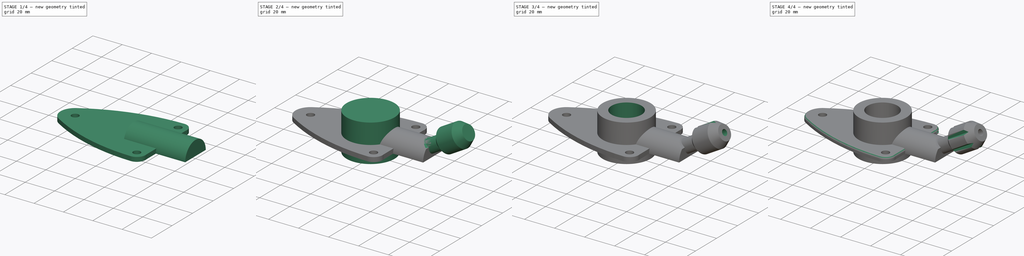
[diagram: build sequence overview — one tinted view per stage of 4, left to right]
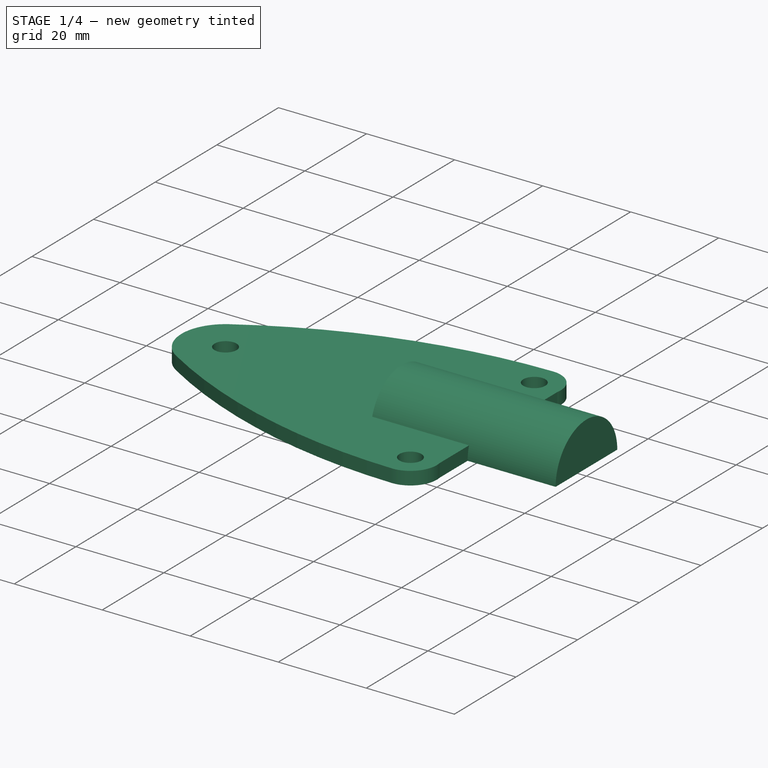
[diagram: stage 1 of 4 — iso view after this stage's code; geometry added in this stage tinted green]
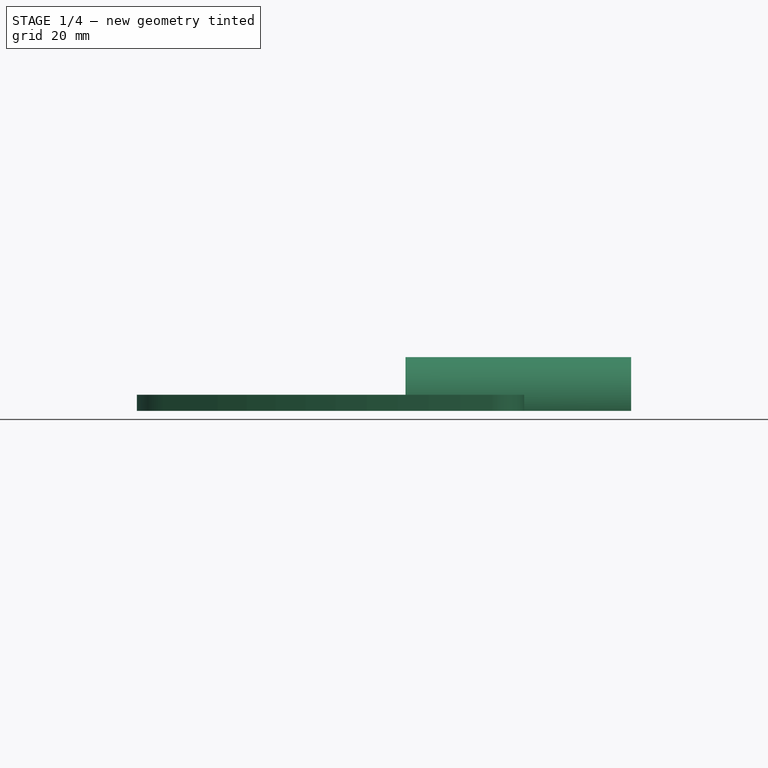
[diagram: stage 1 of 4 — front view after this stage's code; geometry added in this stage tinted green]
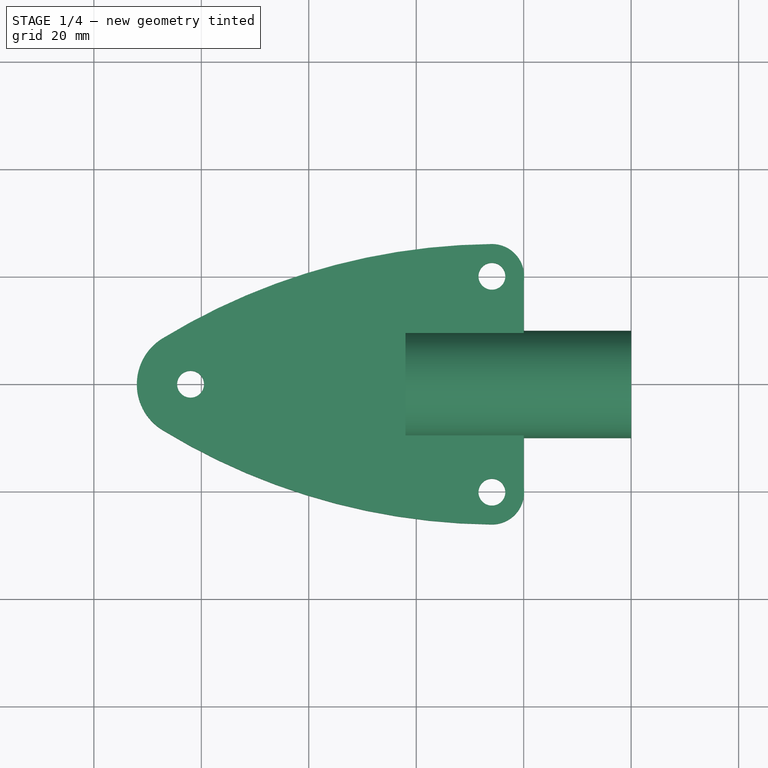
[diagram: stage 1 of 4 — top view after this stage's code; geometry added in this stage tinted green]
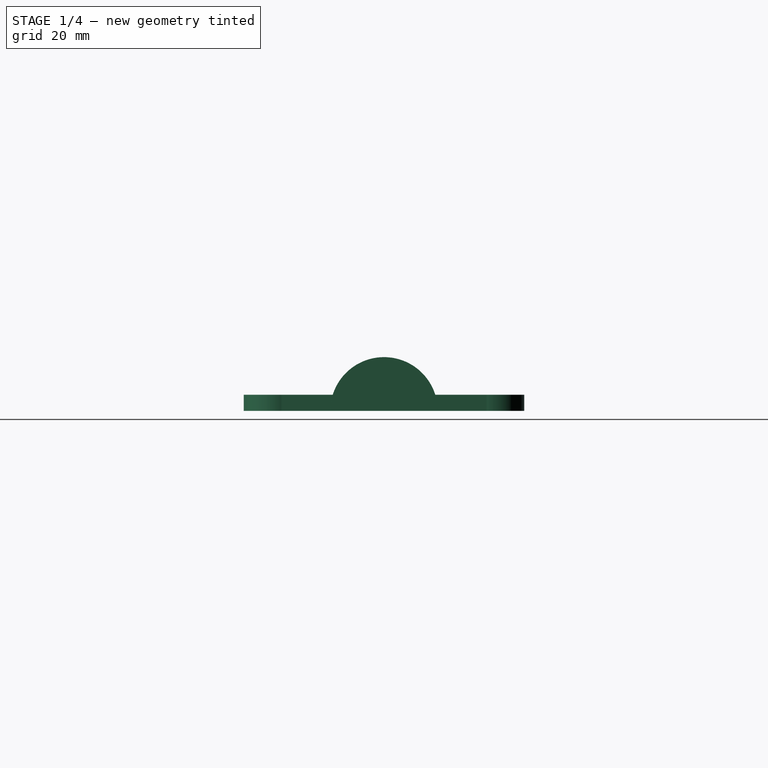
[diagram: stage 1 of 4 — right view after this stage's code; geometry added in this stage tinted green]
FCSTD DOCUMENT  (FreeCAD 0.21R33771 (Git))
Label: ex14
License: All rights reserved
LicenseURL: https://en.wikipedia.org/wiki/All_rights_reserved
objects: Sketcher::SketchObject×9, PartDesign::Pad×3, PartDesign::Pocket×3, PartDesign::Revolution×1, PartDesign::SubtractivePipe×1, PartDesign::PolarPattern×1, PartDesign::Fillet×1, PartDesign::Body×1
note: 29 computed .brp shape members not serialized (recipe doc carries the construction recipe); baked Part::Feature solids carry a one-line shape summary decoded from their .brp

FEATURE [Sketcher::SketchObject] Sketch
  FullyConstrained = false
  MapMode = 5
  Support = -> [XY_Plane]
  sketch-geometry (14):
    g0: ArcOfCircle CenterX=-5.91663 CenterY=20.0936 CenterZ=0 NormalX=0 NormalY=0 NormalZ=1 AngleXU=0 Radius=6 StartAngle=6.11629 EndAngle=7.86462
    g1: ArcOfCircle CenterX=-4.70426 CenterY=-93.8999 CenterZ=0 NormalX=0 NormalY=0 NormalZ=1 AngleXU=0 Radius=120 StartAngle=1.58143 EndAngle=2.11867
    g2: ArcOfCircle CenterX=-62 CenterY=-2.1e-15 CenterZ=0 NormalX=0 NormalY=0 NormalZ=1 AngleXU=0 Radius=10 StartAngle=2.11867 EndAngle=4.16452
    g3: ArcOfCircle CenterX=-4.70426 CenterY=93.8999 CenterZ=0 NormalX=0 NormalY=0 NormalZ=1 AngleXU=0 Radius=120 StartAngle=4.16452 EndAngle=4.70175
    g4: ArcOfCircle CenterX=-5.91663 CenterY=-20.0936 CenterZ=0 NormalX=0 NormalY=0 NormalZ=1 AngleXU=0 Radius=6 StartAngle=4.70175 EndAngle=6.45008
    g5: LineSegment StartX=-9e-16 StartY=19.0969 StartZ=0 EndX=0 EndY=-19.0969 EndZ=0
    g6: LineSegment StartX=-5.98044 StartY=26.0933 StartZ=0 EndX=-67.2087 EndY=8.53636 EndZ=0
    g7: LineSegment StartX=-67.2087 StartY=8.53636 StartZ=0 EndX=-195.772 EndY=-28.3285 EndZ=0
    g8: LineSegment StartX=-5.98044 StartY=-26.0933 StartZ=0 EndX=-67.2087 EndY=-8.53636 EndZ=0
    g9: LineSegment StartX=-67.2087 StartY=-8.53636 StartZ=0 EndX=-167.59 EndY=20.2475 EndZ=0
    g10: GeomPoint X=-72 Y=0 Z=0
    g11: Circle CenterX=-62 CenterY=-2.1e-15 CenterZ=0 NormalX=0 NormalY=0 NormalZ=1 AngleXU=0 Radius=2.5
    g12: Circle CenterX=-5.91663 CenterY=20.0936 CenterZ=0 NormalX=0 NormalY=0 NormalZ=1 AngleXU=0 Radius=2.5
    g13: Circle CenterX=-5.91663 CenterY=-20.0936 CenterZ=0 NormalX=0 NormalY=0 NormalZ=1 AngleXU=0 Radius=2.5
  constraints (32):
    c: PointOnObject(g0,g-2)
    c: Coincident(g3,g2)
    c: Coincident(g5,g0)
    c: Coincident(g5,g4)
    c: Equal(g0,g4)
    c: Radius(g0) = 6
    c: Equal(g1,g3)
    c: Radius(g1) = 120
    c: Tangent(g2,g1) = -1.5708
    c: Vertical(g0,g3)
    c: Symmetric(g0,g4,g-1)
    c: Coincident(g6,g0)
    c: Coincident(g6,g1)
    c: Coincident(g7,g1)
    c: Coincident(g8,g3)
    c: Coincident(g8,g2)
    c: Coincident(g9,g2)
    c: Tangent(g9,g8)
    c: Tangent(g6,g7)
    c: Symmetric(g1,g2,g-1)
    c: PointOnObject(g10,g2)
    c: PointOnObject(g10,g-1)
    c: DistanceX(g10,g-1) = 72
    c: Tangent(g4,g3) = -1.5708
    c: Tangent(g1,g0) = -1.5708
    c: Angle(g9,g7) = 0.558505
    c: Coincident(g11,g2)
    c: Coincident(g12,g0)
    c: Coincident(g13,g4)
    c: Equal(g13,g12)
    c: Equal(g12,g11)
    c: Diameter(g11) = 5
FEATURE [PartDesign::Pad] Pad
  Direction = (0,0,1)
  Length = 3
  Length2 = 10
  Profile = -> Sketch
  ReferenceAxis = -> Sketch [N_Axis]
  Type = 0
FEATURE [Sketcher::SketchObject] Sketch001
  FullyConstrained = true
  MapMode = 5
  Placement = pos=(-4e-16,0,0) rot=(0.57735,0.57735,0.57735;2.0944rad)
  Support = -> [Pad]
  sketch-geometry (2):
    g0: ArcOfCircle CenterX=0 CenterY=0 CenterZ=0 NormalX=0 NormalY=0 NormalZ=1 AngleXU=0 Radius=10 StartAngle=0 EndAngle=3.14159
    g1: LineSegment StartX=-10 StartY=0 StartZ=0 EndX=10 EndY=0 EndZ=0
  constraints (6):
    c: Coincident(g0,g-1)
    c: Horizontal(g1)
    c: Coincident(g0,g1)
    c: Coincident(g0,g1)
    c: PointOnObject(g0,g1)
    c: Diameter(g0) = 20
FEATURE [PartDesign::Pad] Pad001
  BaseFeature = -> Pad
  Direction = (1,0,0)
  Length = 20
  Length2 = 22
  Midplane = true
  Profile = -> Sketch001
  ReferenceAxis = -> Sketch001 [N_Axis]
  Type = 4
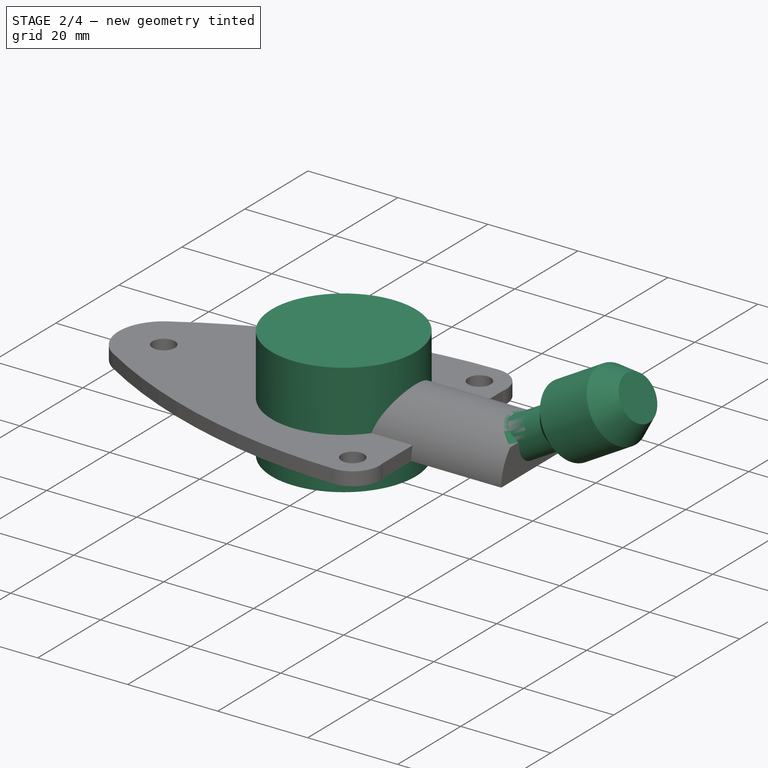
[diagram: stage 2 of 4 — iso view after this stage's code; geometry added in this stage tinted green]
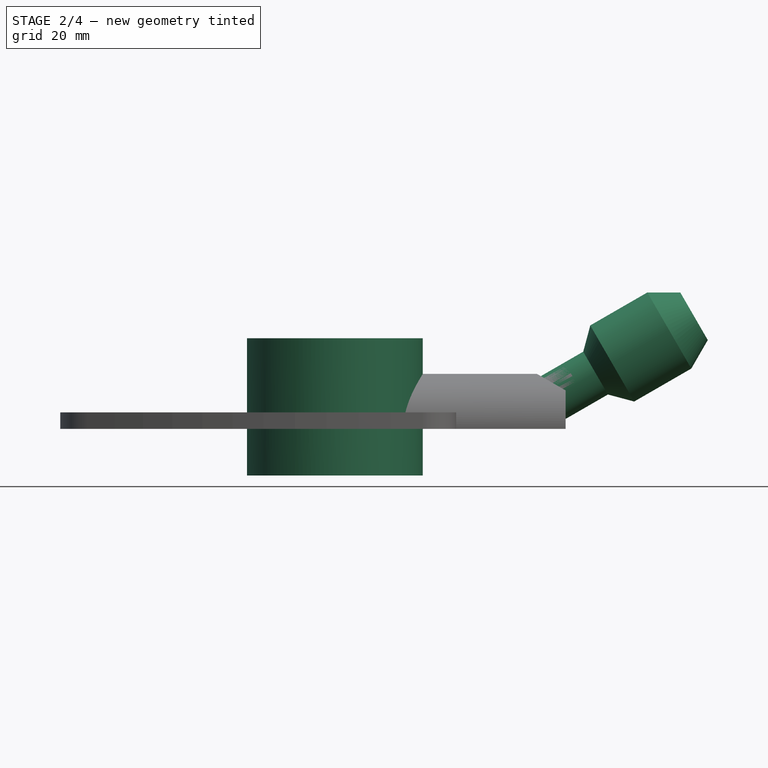
[diagram: stage 2 of 4 — front view after this stage's code; geometry added in this stage tinted green]
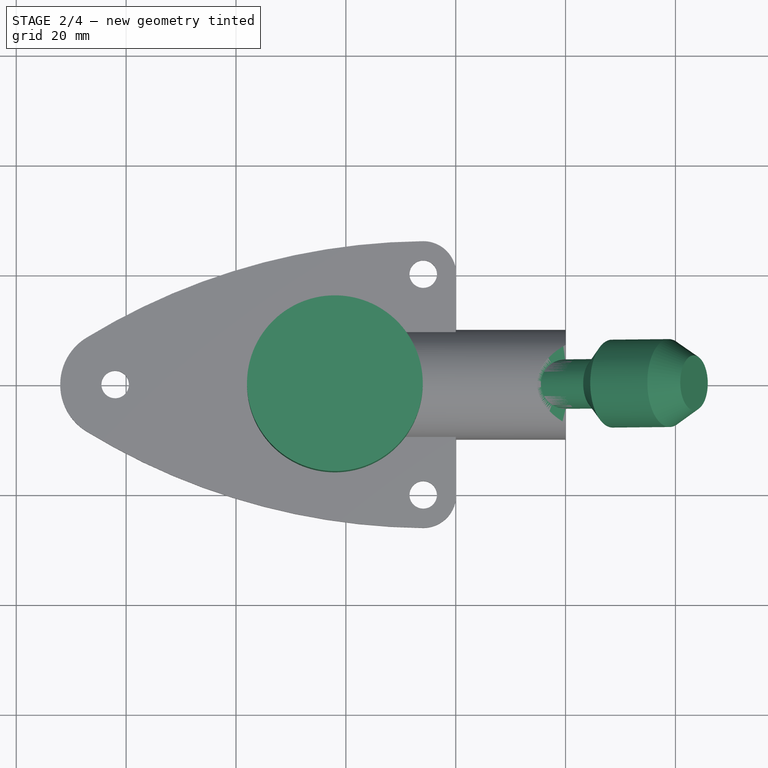
[diagram: stage 2 of 4 — top view after this stage's code; geometry added in this stage tinted green]
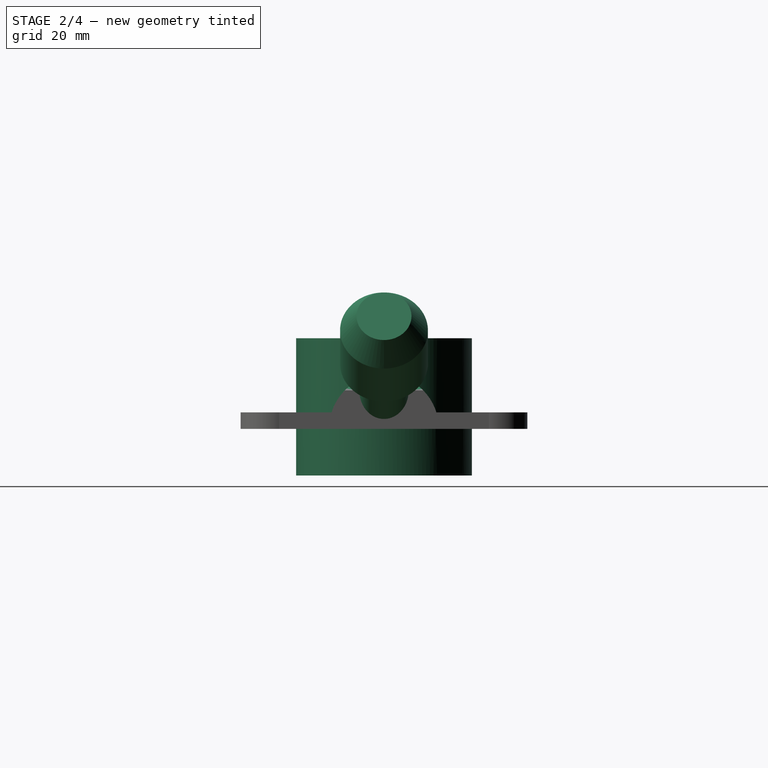
[diagram: stage 2 of 4 — right view after this stage's code; geometry added in this stage tinted green]
FEATURE [Sketcher::SketchObject] Sketch002
  FullyConstrained = true
  MapMode = 5
  Placement = pos=(0,0,3) rot=(0,0,1;0rad)
  Support = -> [Pad001]
  sketch-geometry (1):
    g0: Circle CenterX=-22 CenterY=0 CenterZ=0 NormalX=0 NormalY=0 NormalZ=1 AngleXU=0 Radius=16
  constraints (3):
    c: PointOnObject(g0,g-1)
    c: Diameter(g0) = 32
    c: DistanceX(g0,g-1) = 22
FEATURE [PartDesign::Pad] Pad002
  BaseFeature = -> Pad001
  Direction = (0,0,1)
  Length = 13.5
  Length2 = 11.5
  Profile = -> Sketch002
  ReferenceAxis = -> Sketch002 [N_Axis]
  Type = 4
FEATURE [Sketcher::SketchObject] Sketch003
  FullyConstrained = false
  MapMode = 5
  Placement = pos=(0,0,0) rot=(1,0,0;1.5708rad)
  Support = -> [XZ_Plane]
  sketch-geometry (3):
    g0: LineSegment StartX=0.361766 StartY=18.34 StartZ=0 EndX=20.0032 EndY=7 EndZ=0
    g1: LineSegment StartX=20.0032 StartY=7 StartZ=0 EndX=37.1897 EndY=18.34 EndZ=0
    g2: LineSegment StartX=0.361766 StartY=18.34 StartZ=0 EndX=37.1897 EndY=18.34 EndZ=0
  constraints (7):
    c: Coincident(g2,g0)
    c: Coincident(g2,g1)
    c: Horizontal(g2)
    c: DistanceY(g-1,g0) = 7
    c: Coincident(g1,g0)
    c: Angle(g0,g-1) = 0.523599
    c: Distance(g0) = 22.68
FEATURE [PartDesign::Pocket] Pocket
  BaseFeature = -> Pad002
  Direction = (0,1,-2e-16)
  Length = 5
  Length2 = 5
  Midplane = true
  Profile = -> Sketch003
  ReferenceAxis = -> Sketch003 [N_Axis]
  Type = 1
FEATURE [Sketcher::SketchObject] Sketch004
  ExternalGeometry = -> [Pocket]
  FullyConstrained = true
  MapMode = 5
  Placement = pos=(0,0,0) rot=(1,0,0;1.5708rad)
  Support = -> [XZ_Plane]
  sketch-geometry (3):
    g0: ArcOfCircle CenterX=15 CenterY=15.6621 CenterZ=0 NormalX=0 NormalY=0 NormalZ=1 AngleXU=0 Radius=10 StartAngle=4.71239 EndAngle=5.23599
    g1: LineSegment StartX=15 StartY=5.66211 StartZ=0 EndX=-27 EndY=5.66211 EndZ=0
    g2: LineSegment StartX=20 StartY=7.00186 StartZ=0 EndX=43.3827 EndY=20.5019 EndZ=0
  constraints (8):
    c: Coincident(g0,g-3)
    c: Horizontal(g1)
    c: Tangent(g0,g1) = 1.5708
    c: Tangent(g2,g0) = -1.5708
    c: Angle(g2,g-1) = 2.61799
    c: Distance(g2) = 27
    c: Radius(g0) = 10
    c: DistanceX(g1,g1) = 42
FEATURE [Sketcher::SketchObject] Sketch005
  ExternalGeometry = -> [Sketch004]
  FullyConstrained = false
  MapMode = 5
  Placement = pos=(0,0,0) rot=(1,0,0;1.5708rad)
  Support = -> [XZ_Plane]
  sketch-geometry (8):
    g0: LineSegment StartX=43.3827 StartY=20.5019 StartZ=0 EndX=45.8827 EndY=16.1717 EndZ=0
    g1: LineSegment StartX=45.8827 StartY=16.1717 StartZ=0 EndX=42.8827 EndY=10.9756 EndZ=0
    g2: LineSegment StartX=42.8827 StartY=10.9756 StartZ=0 EndX=32.4904 EndY=4.97558 EndZ=0
    g3: LineSegment StartX=32.4904 StartY=4.97558 StartZ=0 EndX=27.7093 EndY=6.25667 EndZ=0
    g4: LineSegment StartX=27.7093 StartY=6.25667 StartZ=0 EndX=24.3135 EndY=4.29613 EndZ=0
    g5: LineSegment StartX=43.3827 StartY=20.5019 StartZ=0 EndX=14.6224 EndY=3.89711 EndZ=0
    g6: LineSegment StartX=14.6224 StartY=3.89711 StartZ=0 EndX=16.8724 EndY=4e-16 EndZ=0
    g7: LineSegment StartX=16.8724 StartY=4e-16 StartZ=0 EndX=24.3135 EndY=4.29613 EndZ=0
  constraints (22):
    c: Coincident(g-3,g0)
    c: Coincident(g0,g1)
    c: Coincident(g1,g2)
    c: Coincident(g2,g3)
    c: Coincident(g3,g4)
    c: Perpendicular(g0,g-3)
    c: Parallel(g-3,g4)
    c: Parallel(g4,g2)
    c: Distance(g0) = 5
    c: Angle(g-3,g1) = 0.523599
    c: Distance(g1,g-3) = 8
    c: Distance(g2) = 12
    c: Angle(g3,g-3) = 0.785398
    c: Distance(g3,g-3) = 4.5
    c: Coincident(g0,g5)
    c: Coincident(g5,g6)
    c: Coincident(g6,g7)
    c: Coincident(g7,g4)
    c: Perpendicular(g5,g6)
    c: Tangent(g5,g-3)
    c: PointOnObject(g6,g-1)
    c: Parallel(g7,g5)
FEATURE [PartDesign::Revolution] Revolution
  Angle = 360
  Axis = (0.866025,1e-16,0.5)
  Base = (20,1.6e-15,7.00186)
  BaseFeature = -> Pocket
  Profile = -> Sketch005
  ReferenceAxis = -> Sketch004 [Edge3]
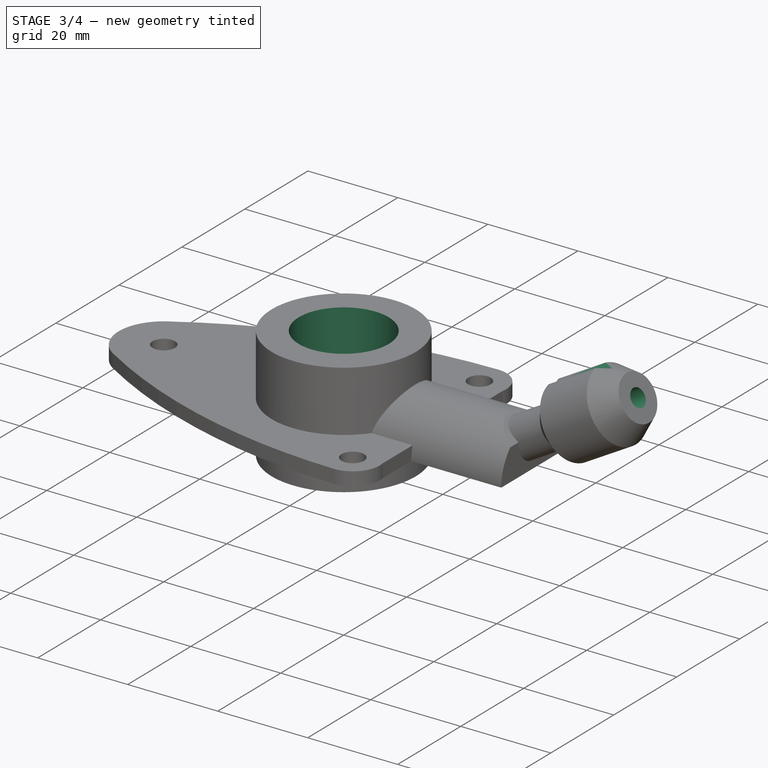
[diagram: stage 3 of 4 — iso view after this stage's code; geometry added in this stage tinted green]
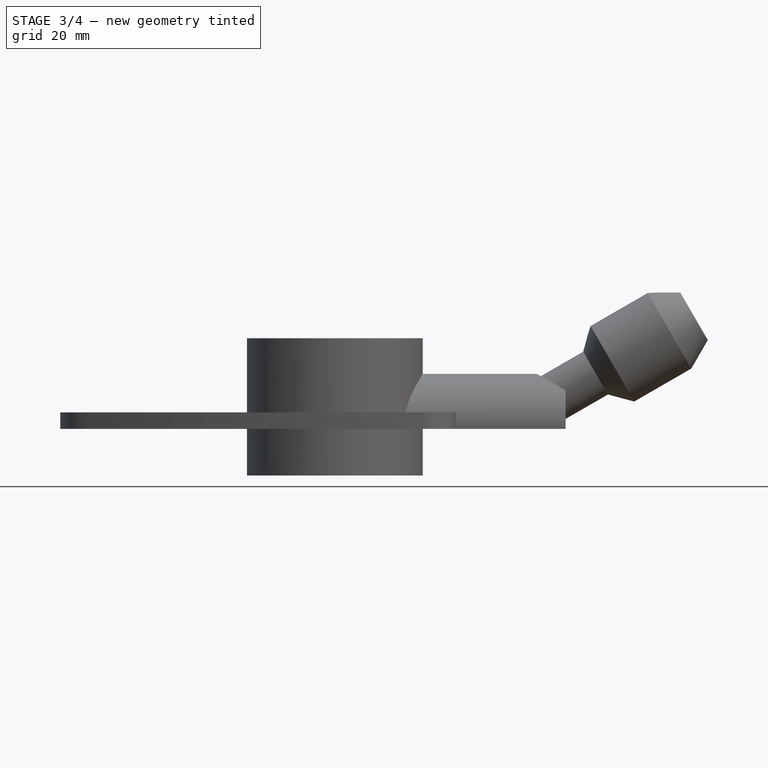
[diagram: stage 3 of 4 — front view after this stage's code; geometry added in this stage tinted green]
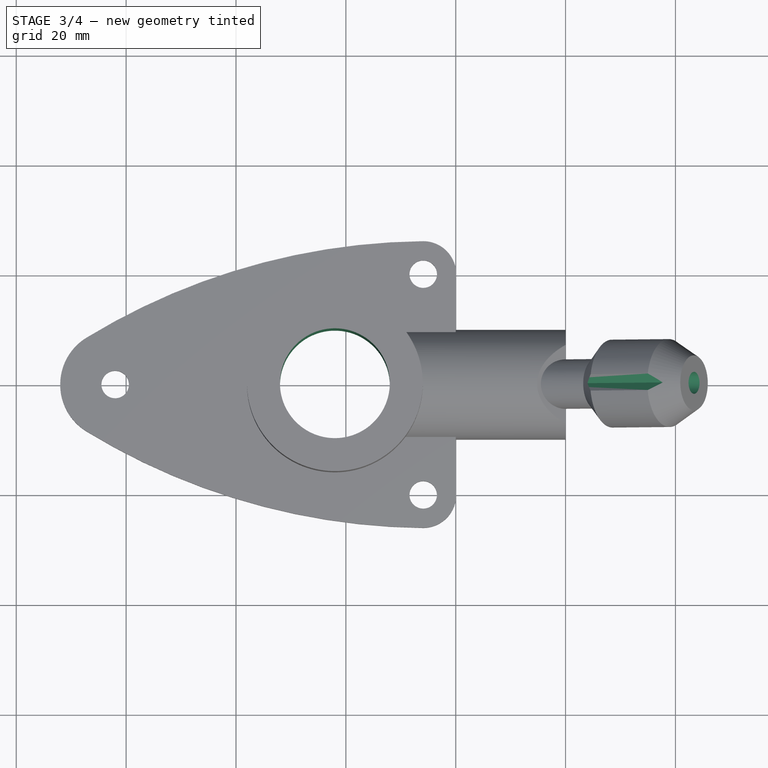
[diagram: stage 3 of 4 — top view after this stage's code; geometry added in this stage tinted green]
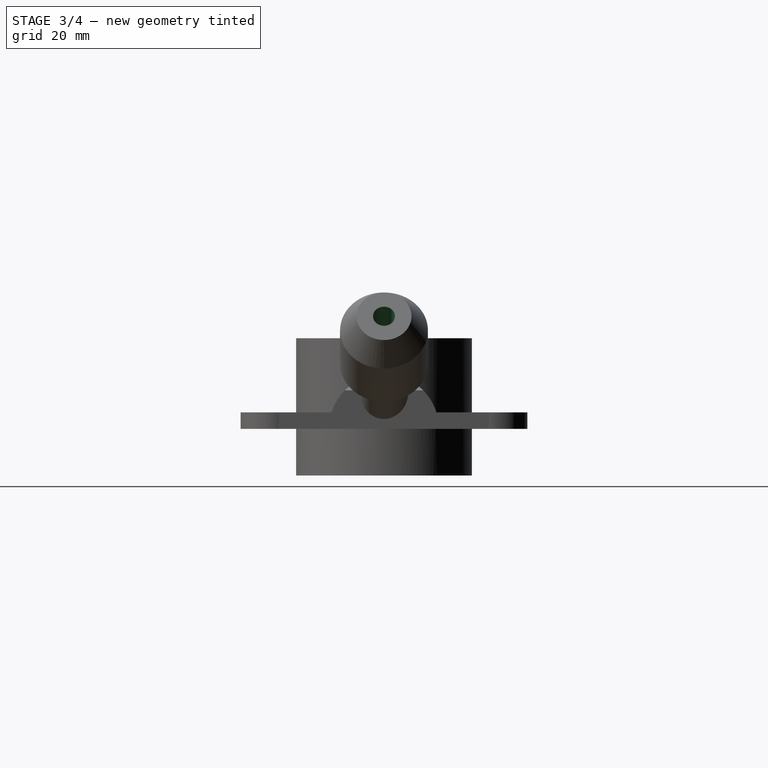
[diagram: stage 3 of 4 — right view after this stage's code; geometry added in this stage tinted green]
FEATURE [Sketcher::SketchObject] Sketch006
  ExternalGeometry = -> [Revolution]
  FullyConstrained = true
  MapMode = 5
  Placement = pos=(41.4146,5.3e-15,23.9107) rot=(0.447214,0.447214,0.774597;1.82348rad)
  Support = -> [Revolution]
  sketch-geometry (1):
    g0: Circle CenterX=0 CenterY=-3.93621 CenterZ=0 NormalX=0 NormalY=0 NormalZ=1 AngleXU=0 Radius=2
  constraints (2):
    c: Coincident(g0,g-3)
    c: Radius(g0) = 2
FEATURE [PartDesign::SubtractivePipe] SubtractivePipe
  AuxilleryCurvelinear = true
  AuxillerySpineTangent = false
  BaseFeature = -> Revolution
  Binormal = (0,0,0)
  Mode = 0
  Profile = -> Sketch006
  Spine = -> Sketch004
  SpineTangent = false
  Transformation = 0
  Transition = 0
FEATURE [Sketcher::SketchObject] Sketch007
  ExternalGeometry = -> [SubtractivePipe]
  FullyConstrained = true
  MapMode = 5
  Placement = pos=(0,0,16.5) rot=(0,0,1;0rad)
  Support = -> [SubtractivePipe]
  sketch-geometry (1):
    g0: Circle CenterX=-22 CenterY=0 CenterZ=0 NormalX=0 NormalY=0 NormalZ=1 AngleXU=0 Radius=10
  constraints (2):
    c: Coincident(g0,g-3)
    c: Radius(g0) = 10
FEATURE [PartDesign::Pocket] Pocket001
  BaseFeature = -> SubtractivePipe
  Direction = (0,0,-1)
  Length = 5
  Length2 = 5
  Profile = -> Sketch007
  ReferenceAxis = -> Sketch007 [N_Axis]
  Type = 1
FEATURE [Sketcher::SketchObject] Sketch008
  ExternalGeometry = -> [Pocket001]
  FullyConstrained = false
  MapMode = 5
  Placement = pos=(41.4146,5.3e-15,23.9107) rot=(0.447214,0.447214,0.774597;1.82348rad)
  Support = -> [Pocket001]
  sketch-geometry (3):
    g0: LineSegment StartX=0 StartY=2.66771 StartZ=0 EndX=1.62771 EndY=3.89645 EndZ=0
    g1: LineSegment StartX=0 StartY=2.66771 StartZ=0 EndX=-1.37229 EndY=3.94521 EndZ=0
    g2: ArcOfCircle CenterX=0.122478 CenterY=3.59893 CenterZ=0 NormalX=0 NormalY=0 NormalZ=1 AngleXU=0 Radius=1.53435 StartAngle=0.195143 EndAngle=2.91394
  constraints (8):
    c: PointOnObject(g0,g-2)
    c: PointOnObject(g0,g-3)
    c: Coincident(g1,g0)
    c: PointOnObject(g1,g-3)
    c: Angle(g0,g1) = 1.74533
    c: Coincident(g2,g1)
    c: Coincident(g2,g0)
    c: DistanceX(g1,g0) = 3
FEATURE [PartDesign::Pocket] Pocket002
  BaseFeature = -> Pocket001
  Direction = (-0.866025,-1e-16,-0.5)
  Length = 20
  Length2 = 5
  Profile = -> Sketch008
  ReferenceAxis = -> Sketch008 [N_Axis]
  Type = 0
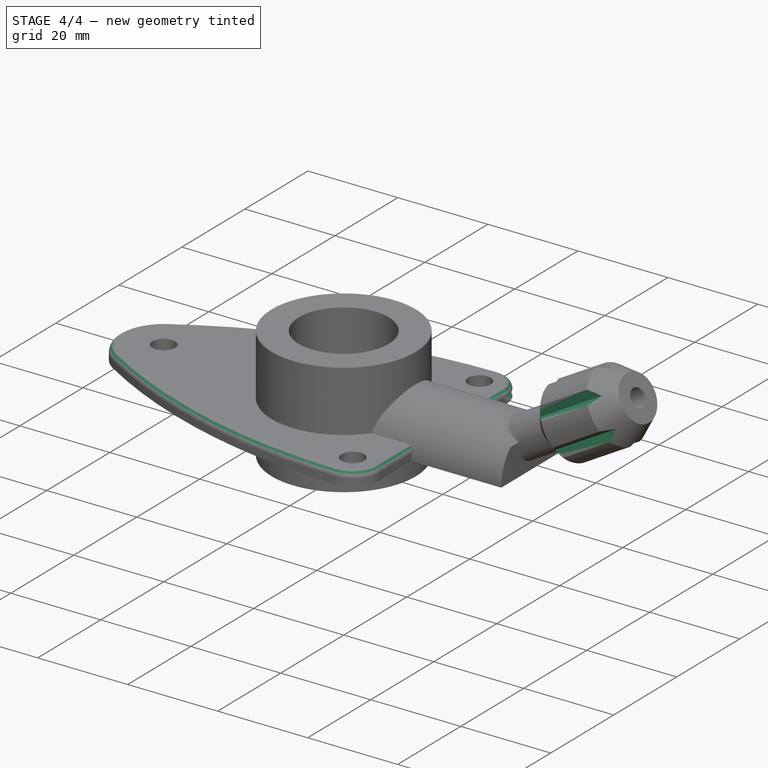
[diagram: stage 4 of 4 — iso view after this stage's code; geometry added in this stage tinted green]
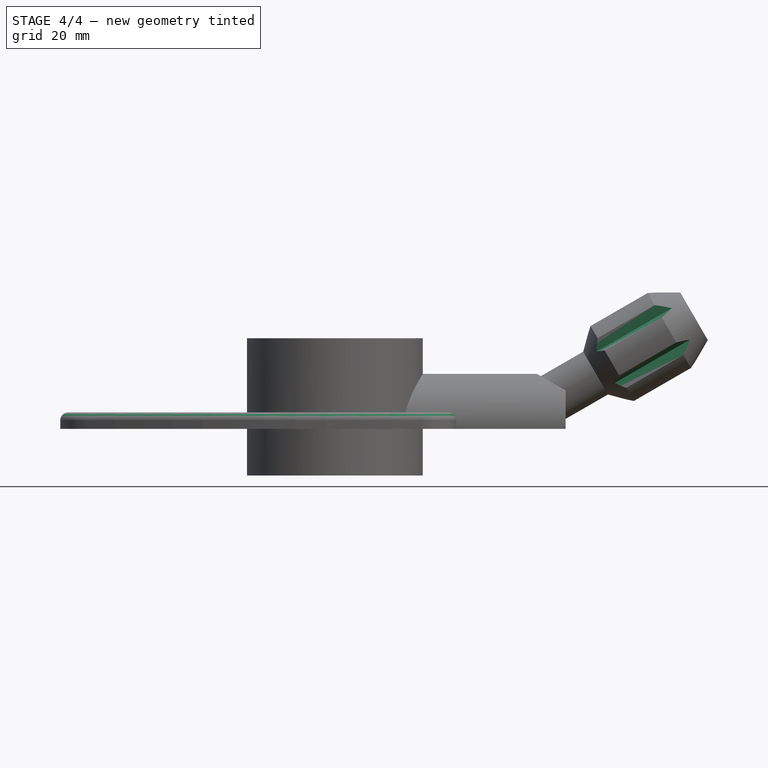
[diagram: stage 4 of 4 — front view after this stage's code; geometry added in this stage tinted green]
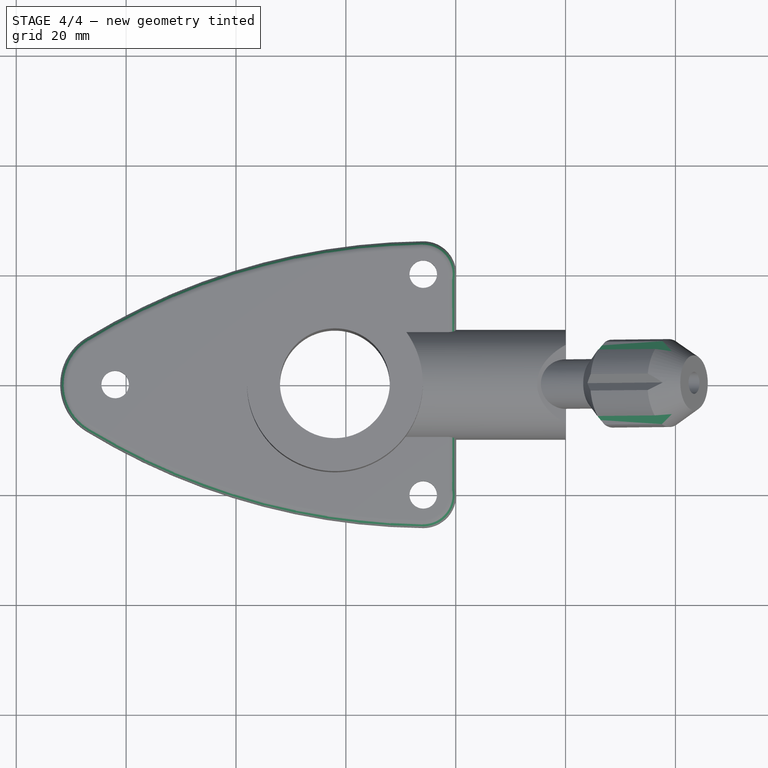
[diagram: stage 4 of 4 — top view after this stage's code; geometry added in this stage tinted green]
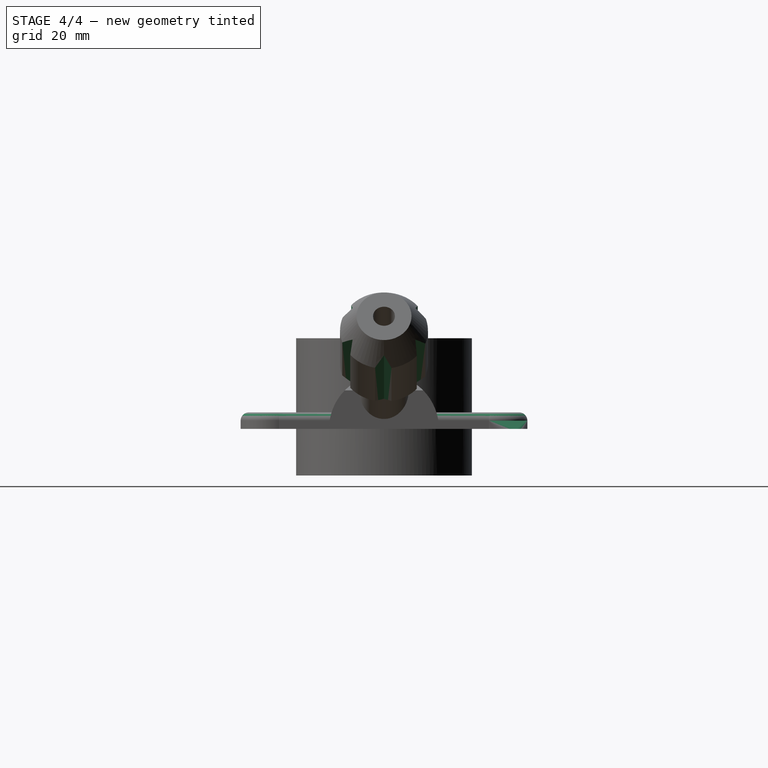
[diagram: stage 4 of 4 — right view after this stage's code; geometry added in this stage tinted green]
FEATURE [PartDesign::PolarPattern] PolarPattern
  Angle = 360
  Axis = -> Pocket002 [Edge89]
  BaseFeature = -> Pocket002
  Occurrences = 6
  Originals = -> [Pocket002]
FEATURE [PartDesign::Fillet] Fillet
  Base = -> PolarPattern [Edge7,Edge4,Edge10,Edge26,Edge27,Edge25,Edge24]
  BaseFeature = -> PolarPattern
  Radius = 1.49
  SupportTransform = false
  UseAllEdges = false
FEATURE [PartDesign::Body] Body
  Group = -> [Sketch,Pad,Sketch001,Pad001,Sketch002,Pad002,Sketch003,Pocket,Sketch004,Sketch005,Revolution,Sketch006,SubtractivePipe,Sketch007,Pocket001,Sketch008,Pocket002,PolarPattern,Fillet]
  Origin = -> Origin
  Tip = -> Fillet
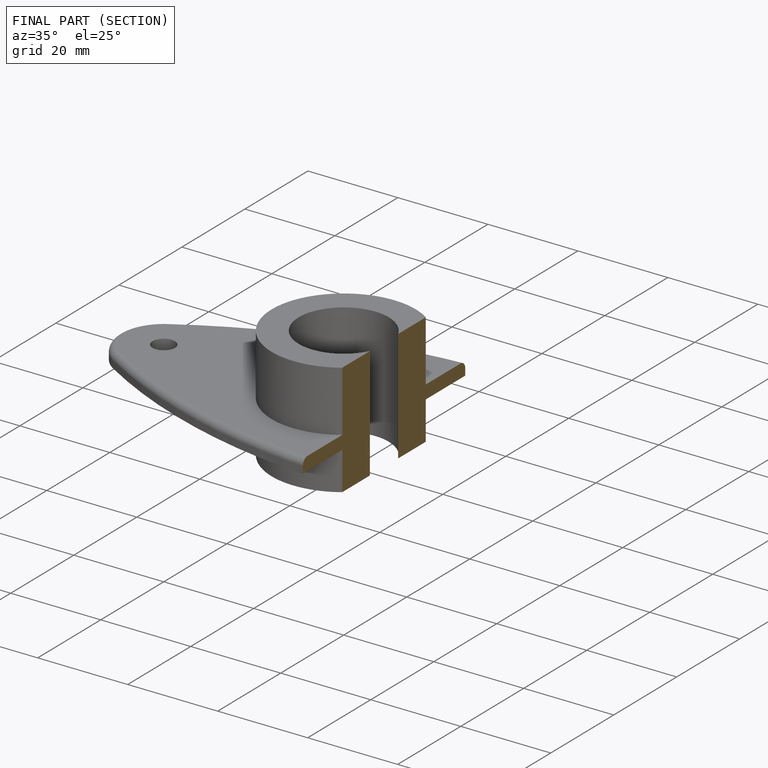
[diagram: finished part — half-section view (interior)]
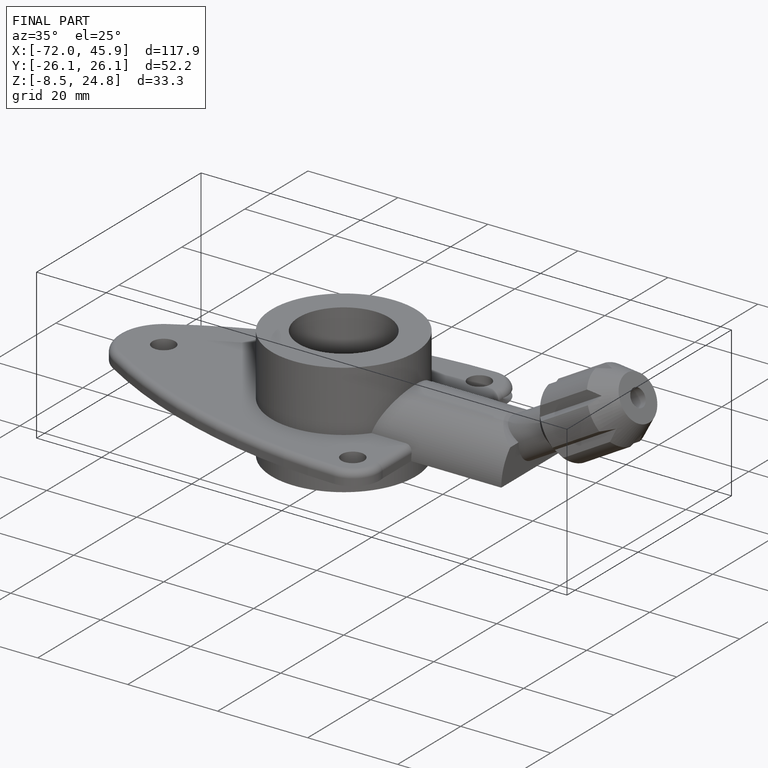
[diagram: finished part — iso view with bounding-box wireframe]
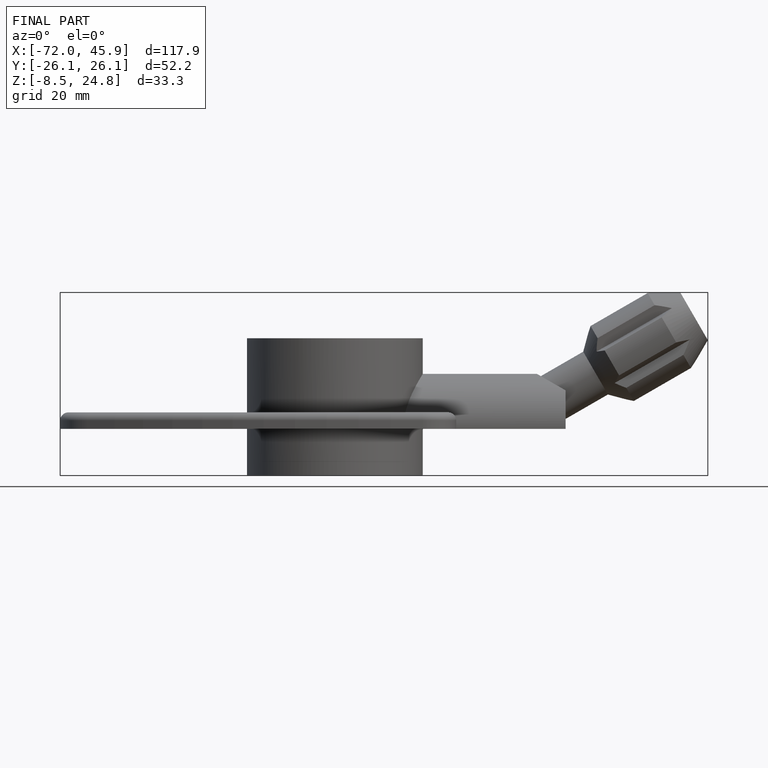
[diagram: finished part — front view with bounding-box wireframe]
